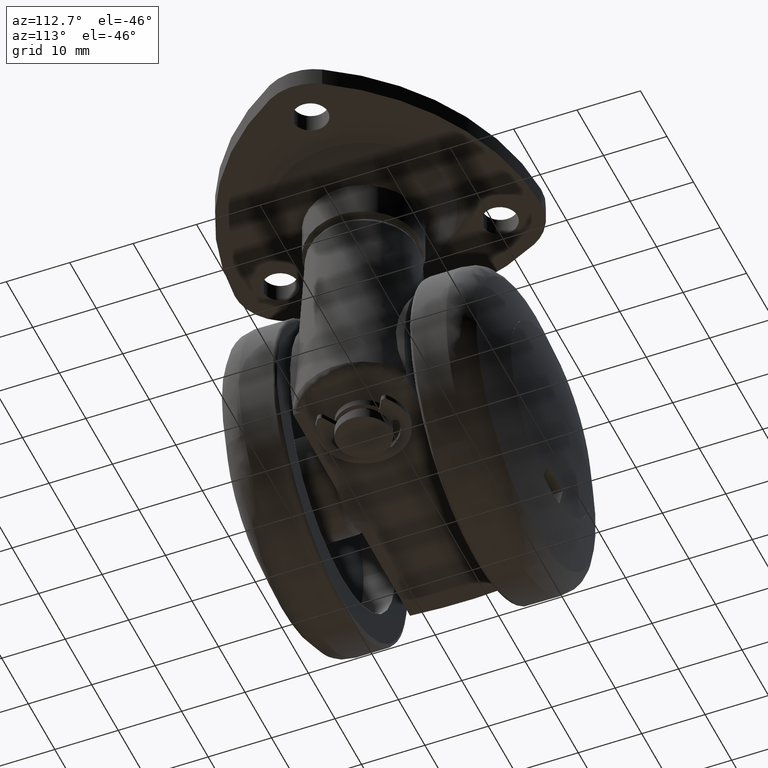
[diagram: clean part render]
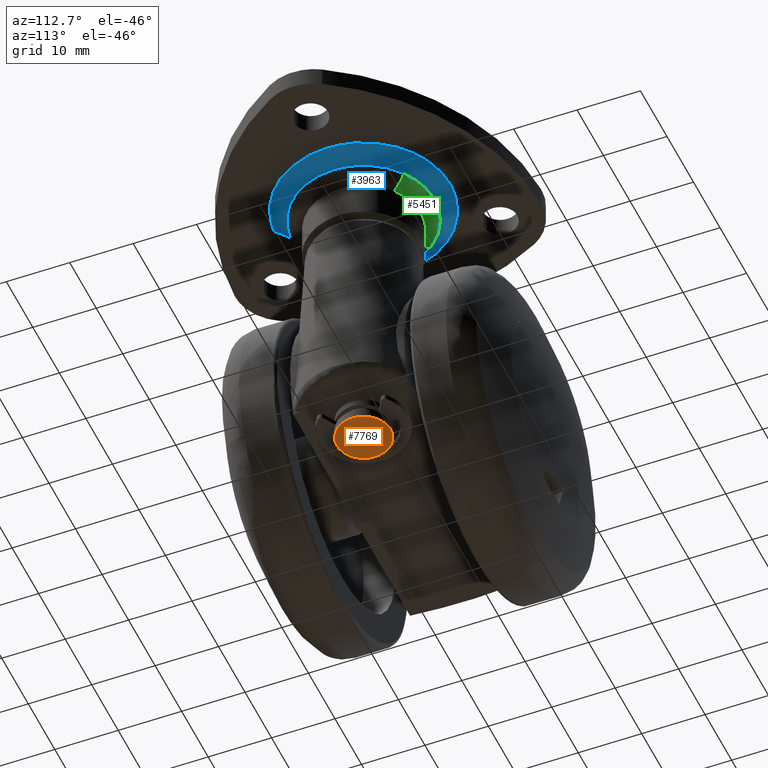
[diagram: same view with three faces highlighted in distinct colors, each labeled with its STEP entity id]
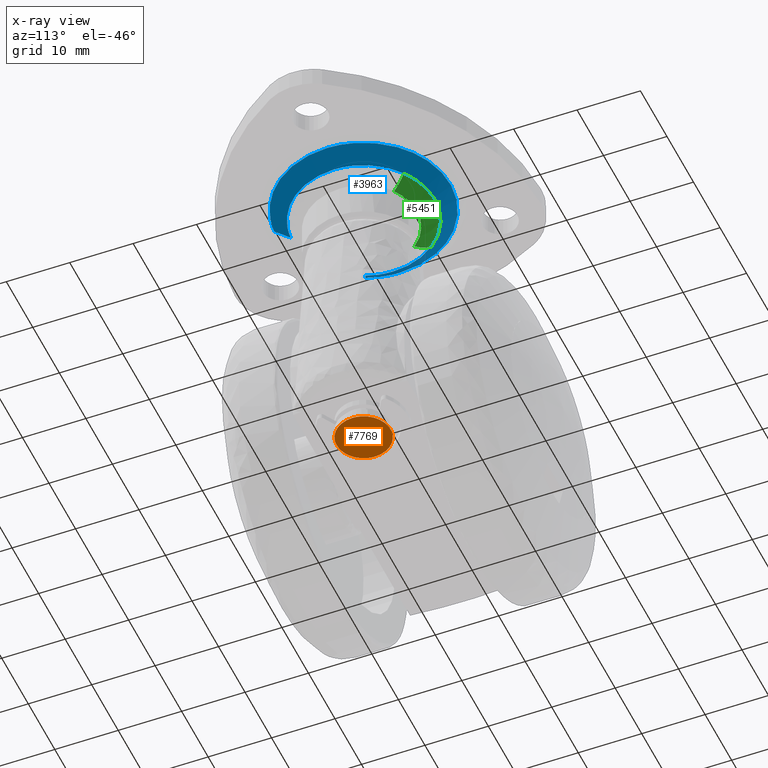
[diagram: x-ray of the same camera — body ghosted, the three highlighted faces saturated]
A machine part, auxiliary view with three faces highlighted in distinct colors.
The next image is the same camera in x-ray (body ghosted, the three faces saturated) — at least one of them is partly hidden behind the body in this view.
Their STEP definitions:

[orange] entity #7769 — the highlighted face is a freeform B-spline surface patch.
#5949=CARTESIAN_POINT('',(16.498354502571740,4.220290487029294,-11.0));
#5950=VERTEX_POINT('',#5949);
#5951=CARTESIAN_POINT('',(21.250000000000000,0.0,-11.0));
#5952=VERTEX_POINT('',#5951);
#5953=CARTESIAN_POINT('',(16.498354502571740,4.220290487029294,-11.000000000000005));
#5954=CARTESIAN_POINT('',(16.748297491340900,4.250000000000000,-11.000000000000004));
#5955=CARTESIAN_POINT('',(17.0,4.250000000000000,-11.0));
#5956=CARTESIAN_POINT('',(21.250000000000007,4.249999999999999,-11.0));
#5957=CARTESIAN_POINT('',(21.250000000000000,0.0,-11.0));
#5965=(BOUNDED_CURVE()B_SPLINE_CURVE(2,(#5953,#5954,#5955,#5956,#5957),.UNSPECIFIED.,.F.,.U.)B_SPLINE_CURVE_WITH_KNOTS((3,2,3),(0.229562473504669,0.250000000000000,0.500000000000000),.UNSPECIFIED.)CURVE()GEOMETRIC_REPRESENTATION_ITEM()RATIONAL_B_SPLINE_CURVE((0.956026754166373,0.976055948320789,1.0,0.707106781186548,1.0))REPRESENTATION_ITEM(''));
#5966=EDGE_CURVE('',#5950,#5952,#5965,.T.);
#6007=CARTESIAN_POINT('',(17.259449327781549,-4.242073319293881,-11.000000000000540));
#6008=VERTEX_POINT('',#6007);
#6014=CARTESIAN_POINT('',(21.250000000000000,0.0,-11.0));
#6015=CARTESIAN_POINT('',(21.249999999999996,-3.998007361109719,-11.0));
#6016=CARTESIAN_POINT('',(17.259449327781542,-4.242073319293881,-11.000000000000542));
#6024=(BOUNDED_CURVE()B_SPLINE_CURVE(2,(#6014,#6015,#6016),.UNSPECIFIED.,.F.,.U.)B_SPLINE_CURVE_WITH_KNOTS((3,3),(0.500000000000000,0.739333245554010),.UNSPECIFIED.)CURVE()GEOMETRIC_REPRESENTATION_ITEM()RATIONAL_B_SPLINE_CURVE((1.0,0.719603661362463,0.976072648865589))REPRESENTATION_ITEM(''));
#6025=EDGE_CURVE('',#5952,#6008,#6024,.T.);
#6048=CARTESIAN_POINT('',(12.750000000000000,0.0,-11.0));
#6049=VERTEX_POINT('',#6048);
#6050=CARTESIAN_POINT('',(12.750000000000000,0.0,-11.0));
#6051=CARTESIAN_POINT('',(12.750000000000004,3.774741735046444,-11.0));
#6052=CARTESIAN_POINT('',(16.498354502571743,4.220290487029294,-11.000000000000007));
#6060=(BOUNDED_CURVE()B_SPLINE_CURVE(2,(#6050,#6051,#6052),.UNSPECIFIED.,.F.,.U.)B_SPLINE_CURVE_WITH_KNOTS((3,3),(0.0,0.229562473504669),.UNSPECIFIED.)CURVE()GEOMETRIC_REPRESENTATION_ITEM()RATIONAL_B_SPLINE_CURVE((1.0,0.731050832865759,0.956026754166373))REPRESENTATION_ITEM(''));
#6061=EDGE_CURVE('',#6049,#5950,#6060,.T.);
#6063=CARTESIAN_POINT('',(17.259449327781549,-4.242073319293881,-11.000000000000540));
#6064=CARTESIAN_POINT('',(17.129845751633713,-4.250000000000000,-11.000000000000005));
#6065=CARTESIAN_POINT('',(17.0,-4.250000000000000,-11.0));
#6066=CARTESIAN_POINT('',(12.750000000000002,-4.249999999999999,-11.0));
#6067=CARTESIAN_POINT('',(12.750000000000000,0.0,-11.0));
#6075=(BOUNDED_CURVE()B_SPLINE_CURVE(2,(#6063,#6064,#6065,#6066,#6067),.UNSPECIFIED.,.F.,.U.)B_SPLINE_CURVE_WITH_KNOTS((3,2,3),(0.739333245554010,0.750000000000000,1.0),.UNSPECIFIED.)CURVE()GEOMETRIC_REPRESENTATION_ITEM()RATIONAL_B_SPLINE_CURVE((0.976072648865589,0.987503119824085,1.0,0.707106781186548,1.0))REPRESENTATION_ITEM(''));
#6076=EDGE_CURVE('',#6008,#6049,#6075,.T.);
#7758=CARTESIAN_POINT('',(12.325425016474650,-4.674471941262461,-11.0));
#7759=CARTESIAN_POINT('',(21.674575211513119,-4.674471941262461,-11.0));
#7760=CARTESIAN_POINT('',(12.325425016474650,4.674497703880048,-11.0));
#7761=CARTESIAN_POINT('',(21.674575211513119,4.674497703880048,-11.0));
#7762=B_SPLINE_SURFACE_WITH_KNOTS('',1,1,((#7758,#7760),(#7759,#7761)),.UNSPECIFIED.,.F.,.F.,.U.,(2,2),(2,2),(0.0,9.349150195038469),(0.0,9.348969645142510),.UNSPECIFIED.);
#7763=ORIENTED_EDGE('',*,*,#6061,.T.);
#7764=ORIENTED_EDGE('',*,*,#5966,.T.);
#7765=ORIENTED_EDGE('',*,*,#6025,.T.);
#7766=ORIENTED_EDGE('',*,*,#6076,.T.);
#7767=EDGE_LOOP('',(#7763,#7764,#7765,#7766));
#7768=FACE_OUTER_BOUND('',#7767,.T.);
#7769=ADVANCED_FACE('',(#7768),#7762,.F.);

[blue] entity #3963 — the highlighted face is a freeform B-spline surface patch.
#3732=CARTESIAN_POINT('',(17.876781022453041,-11.140559179807500,34.410533000002452));
#3733=VERTEX_POINT('',#3732);
#3734=CARTESIAN_POINT('',(6.608757670095598,-4.111312034045279,34.410533000000783));
#3735=VERTEX_POINT('',#3734);
#3751=CARTESIAN_POINT('',(18.074235722936152,-13.649459027250510,36.529822727381827));
#3752=VERTEX_POINT('',#3751);
#3753=CARTESIAN_POINT('',(17.876781022453041,-11.140559179807500,34.410533000002452));
#3754=CARTESIAN_POINT('',(18.074235722936152,-13.649459027250510,36.529822727381827));
#3755=QUASI_UNIFORM_CURVE('',1,(#3753,#3754),.UNSPECIFIED.,.F.,.U.);
#3756=EDGE_CURVE('',#3733,#3752,#3755,.T.);
#3758=CARTESIAN_POINT('',(4.268607065961804,-5.037196450454438,36.529822727268837));
#3759=VERTEX_POINT('',#3758);
#3775=CARTESIAN_POINT('',(6.608757670095598,-4.111312034045279,34.410533000000783));
#3776=CARTESIAN_POINT('',(4.268607065961804,-5.037196450454438,36.529822727268837));
#3777=QUASI_UNIFORM_CURVE('',1,(#3775,#3776),.UNSPECIFIED.,.F.,.U.);
#3778=EDGE_CURVE('',#3735,#3759,#3777,.T.);
#3783=CARTESIAN_POINT('',(17.871844638476311,-11.077836474616220,34.357550580268402));
#3784=CARTESIAN_POINT('',(28.949681113092531,-10.205991836139907,34.357550580268402));
#3785=CARTESIAN_POINT('',(28.077836474616220,0.871844638476311,34.357550580268402));
#3786=CARTESIAN_POINT('',(27.205991836139908,11.949681113092529,34.357550580268402));
#3787=CARTESIAN_POINT('',(16.128155361523689,11.077836474616220,34.357550580268402));
#3788=CARTESIAN_POINT('',(5.050318886907472,10.205991836139907,34.357550580268402));
#3789=CARTESIAN_POINT('',(5.922163525383782,-0.871844638476311,34.357550580268402));
#3790=CARTESIAN_POINT('',(6.053132990209122,-2.535969472734319,34.357550580268395));
#3791=CARTESIAN_POINT('',(6.667261630145285,-4.088164846494024,34.357550580268395));
#3792=CARTESIAN_POINT('',(18.079295499858659,-13.713749592036150,36.584129531861322));
#3793=CARTESIAN_POINT('',(31.793045091894808,-12.634454092177487,36.584129531861322));
#3794=CARTESIAN_POINT('',(30.713749592036152,1.079295499858661,36.584129531861322));
#3795=CARTESIAN_POINT('',(29.634454092177492,14.793045091894804,36.584129531861322));
#3796=CARTESIAN_POINT('',(15.920704500141341,13.713749592036150,36.584129531861322));
#3797=CARTESIAN_POINT('',(2.206954908105190,12.634454092177487,36.584129531861322));
#3798=CARTESIAN_POINT('',(3.286250407963852,-1.079295499858661,36.584129531861322));
#3799=CARTESIAN_POINT('',(3.448383370382394,-3.139390114831175,36.584129531861322));
#3800=CARTESIAN_POINT('',(4.208640700835003,-5.060922240931187,36.584129531861308));
#3808=(BOUNDED_SURFACE()B_SPLINE_SURFACE(2,1,((#3783,#3792),(#3784,#3793),(#3785,#3794),(#3786,#3795),(#3787,#3796),(#3788,#3797),(#3789,#3798),(#3790,#3799),(#3791,#3800)),.UNSPECIFIED.,.F.,.F.,.U.)B_SPLINE_SURFACE_WITH_KNOTS((3,2,2,2,3),(2,2),(0.0,22.791944245722210,45.583888491444412,68.375832737166618,72.934221586311068),(0.0,3.456693166908427),.UNSPECIFIED.)GEOMETRIC_REPRESENTATION_ITEM()RATIONAL_B_SPLINE_SURFACE(((1.0,1.0),(0.707106781186548,0.707106781186548),(1.0,1.0),(0.707106781186548,0.707106781186548),(1.0,1.0),(0.707106781186548,0.707106781186548),(1.0,1.0),(0.941421356237310,0.941421356237310),(0.906274169979695,0.906274169979695)))REPRESENTATION_ITEM('')SURFACE());
#3809=CARTESIAN_POINT('',(5.824992000000102,0.0,34.410533000000001));
#3810=VERTEX_POINT('',#3809);
#3811=CARTESIAN_POINT('',(6.608757670095599,-4.111312034045279,34.410533000000775));
#3812=CARTESIAN_POINT('',(5.824992000000101,-2.130363144647019,34.410533000000001));
#3813=CARTESIAN_POINT('',(5.824992000000102,0.0,34.410533000000001));
#3821=(BOUNDED_CURVE()B_SPLINE_CURVE(2,(#3811,#3812,#3813),.UNSPECIFIED.,.F.,.U.)B_SPLINE_CURVE_WITH_KNOTS((3,3),(0.937532549939185,1.0),.UNSPECIFIED.)CURVE()GEOMETRIC_REPRESENTATION_ITEM()RATIONAL_B_SPLINE_CURVE((0.890203187501033,0.926814829922477,1.0))REPRESENTATION_ITEM(''));
#3822=EDGE_CURVE('',#3735,#3810,#3821,.T.);
#3823=ORIENTED_EDGE('',*,*,#3822,.F.);
#3824=ORIENTED_EDGE('',*,*,#3778,.T.);
#3825=CARTESIAN_POINT('',(3.308334136370140,0.0,36.529822727266946));
#3826=VERTEX_POINT('',#3825);
#3827=CARTESIAN_POINT('',(4.268607065961803,-5.037196450454438,36.529822727268837));
#3828=CARTESIAN_POINT('',(3.308334136370141,-2.610129705933102,36.529822727266954));
#3829=CARTESIAN_POINT('',(3.308334136370140,0.0,36.529822727266946));
#3837=(BOUNDED_CURVE()B_SPLINE_CURVE(2,(#3827,#3828,#3829),.UNSPECIFIED.,.F.,.U.)B_SPLINE_CURVE_WITH_KNOTS((3,3),(0.437532549938905,0.500000000000000),.UNSPECIFIED.)CURVE()GEOMETRIC_REPRESENTATION_ITEM()RATIONAL_B_SPLINE_CURVE((0.890203187500705,0.926814829922149,1.0))REPRESENTATION_ITEM(''));
#3838=EDGE_CURVE('',#3759,#3826,#3837,.T.);
#3839=ORIENTED_EDGE('',*,*,#3838,.T.);
#3840=CARTESIAN_POINT('',(8.140725978785367,10.439108101375851,36.529822727694182));
#3841=VERTEX_POINT('',#3840);
#3842=CARTESIAN_POINT('',(3.308334136370140,0.0,36.529822727266946));
#3843=CARTESIAN_POINT('',(3.308334136370141,6.338040931546702,36.529822727266968));
#3844=CARTESIAN_POINT('',(8.140725978785367,10.439108101375851,36.529822727694182));
#3852=(BOUNDED_CURVE()B_SPLINE_CURVE(2,(#3842,#3843,#3844),.UNSPECIFIED.,.F.,.U.)B_SPLINE_CURVE_WITH_KNOTS((3,3),(0.500000000000000,0.637331629833570),.UNSPECIFIED.)CURVE()GEOMETRIC_REPRESENTATION_ITEM()RATIONAL_B_SPLINE_CURVE((1.0,0.839105987572592,0.854978670802133))REPRESENTATION_ITEM(''));
#3853=EDGE_CURVE('',#3826,#3841,#3852,.T.);
#3854=ORIENTED_EDGE('',*,*,#3853,.T.);
#3855=CARTESIAN_POINT('',(26.915338952621539,9.441809551409151,36.529822728163943));
#3856=VERTEX_POINT('',#3855);
#3857=CARTESIAN_POINT('',(8.140725978785367,10.439108101375849,36.529822727694182));
#3858=CARTESIAN_POINT('',(11.973297588121159,13.691665863629863,36.529822727266968));
#3859=CARTESIAN_POINT('',(17.0,13.691665863629860,36.529822727266946));
#3860=CARTESIAN_POINT('',(22.868444123588951,13.691665863629868,36.529822727266968));
#3861=CARTESIAN_POINT('',(26.915338952621532,9.441809551409151,36.529822728163936));
#3869=(BOUNDED_CURVE()B_SPLINE_CURVE(2,(#3857,#3858,#3859,#3860,#3861),.UNSPECIFIED.,.F.,.U.)B_SPLINE_CURVE_WITH_KNOTS((3,2,3),(0.637331629833571,0.750000000000000,0.878690594339404),.UNSPECIFIED.)CURVE()GEOMETRIC_REPRESENTATION_ITEM()RATIONAL_B_SPLINE_CURVE((0.854978670802134,0.868000793613956,1.0,0.849229590371663,0.853681049734255))REPRESENTATION_ITEM(''));
#3870=EDGE_CURVE('',#3841,#3856,#3869,.T.);
#3871=ORIENTED_EDGE('',*,*,#3870,.T.);
#3872=CARTESIAN_POINT('',(30.691665863629861,0.0,36.529822727266946));
#3873=VERTEX_POINT('',#3872);
#3874=CARTESIAN_POINT('',(26.915338952621529,9.441809551409151,36.529822728163929));
#3875=CARTESIAN_POINT('',(30.691665863629858,5.476090784342007,36.529822727266946));
#3876=CARTESIAN_POINT('',(30.691665863629861,0.0,36.529822727266946));
#3884=(BOUNDED_CURVE()B_SPLINE_CURVE(2,(#3874,#3875,#3876),.UNSPECIFIED.,.F.,.U.)B_SPLINE_CURVE_WITH_KNOTS((3,3),(0.878690594339404,1.0),.UNSPECIFIED.)CURVE()GEOMETRIC_REPRESENTATION_ITEM()RATIONAL_B_SPLINE_CURVE((0.853681049734255,0.857877190814885,1.0))REPRESENTATION_ITEM(''));
#3885=EDGE_CURVE('',#3856,#3873,#3884,.T.);
#3886=ORIENTED_EDGE('',*,*,#3885,.T.);
#3887=CARTESIAN_POINT('',(30.691665863629861,0.0,36.529822727266946));
#3888=CARTESIAN_POINT('',(30.691665863629854,-12.656445738822175,36.529822727266961));
#3889=CARTESIAN_POINT('',(18.074235722936145,-13.649459027250515,36.529822727381827));
#3897=(BOUNDED_CURVE()B_SPLINE_CURVE(2,(#3887,#3888,#3889),.UNSPECIFIED.,.F.,.U.)B_SPLINE_CURVE_WITH_KNOTS((3,3),(0.0,0.236331300626306),.UNSPECIFIED.)CURVE()GEOMETRIC_REPRESENTATION_ITEM()RATIONAL_B_SPLINE_CURVE((1.0,0.723120658612767,0.969723356158331))REPRESENTATION_ITEM(''));
#3898=EDGE_CURVE('',#3873,#3752,#3897,.T.);
#3899=ORIENTED_EDGE('',*,*,#3898,.T.);
#3900=ORIENTED_EDGE('',*,*,#3756,.F.);
#3901=CARTESIAN_POINT('',(28.175007999999899,0.0,34.410533000000001));
#3902=VERTEX_POINT('',#3901);
#3903=CARTESIAN_POINT('',(28.175007999999899,0.0,34.410533000000001));
#3904=CARTESIAN_POINT('',(28.175007999999909,-10.330071139364527,34.410533000000008));
#3905=CARTESIAN_POINT('',(17.876781022453041,-11.140559179807502,34.410533000002452));
#3913=(BOUNDED_CURVE()B_SPLINE_CURVE(2,(#3903,#3904,#3905),.UNSPECIFIED.,.F.,.U.)B_SPLINE_CURVE_WITH_KNOTS((3,3),(0.500000000000000,0.736331300632109),.UNSPECIFIED.)CURVE()GEOMETRIC_REPRESENTATION_ITEM()RATIONAL_B_SPLINE_CURVE((1.0,0.723120658605968,0.969723356170442))REPRESENTATION_ITEM(''));
#3914=EDGE_CURVE('',#3902,#3733,#3913,.T.);
#3915=ORIENTED_EDGE('',*,*,#3914,.F.);
#3916=CARTESIAN_POINT('',(23.505442092297219,9.086259052067513,34.410535591069703));
#3917=VERTEX_POINT('',#3916);
#3918=CARTESIAN_POINT('',(23.505442092297212,9.086259052067513,34.410535591069710));
#3919=CARTESIAN_POINT('',(28.175008997290718,5.743011179996732,34.410534295534852));
#3920=CARTESIAN_POINT('',(28.175007999999899,0.0,34.410533000000001));
#3928=(BOUNDED_CURVE()B_SPLINE_CURVE(2,(#3918,#3919,#3920),.UNSPECIFIED.,.F.,.U.)B_SPLINE_CURVE_WITH_KNOTS((3,3),(0.350192971059488,0.500000000000000),.UNSPECIFIED.)CURVE()GEOMETRIC_REPRESENTATION_ITEM()RATIONAL_B_SPLINE_CURVE((0.859321172120591,0.824490148370934,1.0))REPRESENTATION_ITEM(''));
#3929=EDGE_CURVE('',#3917,#3902,#3928,.T.);
#3930=ORIENTED_EDGE('',*,*,#3929,.F.);
#3931=CARTESIAN_POINT('',(8.300677439521740,7.014456074907987,34.410532827778042));
#3932=VERTEX_POINT('',#3931);
#3933=CARTESIAN_POINT('',(8.300677439521740,7.014456074907987,34.410532827778042));
#3934=CARTESIAN_POINT('',(11.655423030706242,11.175008773340302,34.410533527503546));
#3935=CARTESIAN_POINT('',(17.000001148093499,11.175009703363649,34.410534481113892));
#3936=CARTESIAN_POINT('',(20.588047484819928,11.175010327728522,34.410535121313728));
#3937=CARTESIAN_POINT('',(23.505442092297212,9.086259052067513,34.410535591069710));
#3945=(BOUNDED_CURVE()B_SPLINE_CURVE(2,(#3933,#3934,#3935,#3936,#3937),.UNSPECIFIED.,.F.,.U.)B_SPLINE_CURVE_WITH_KNOTS((3,2,3),(0.108867648264104,0.250000000000000,0.350192971059488),.UNSPECIFIED.)CURVE()GEOMETRIC_REPRESENTATION_ITEM()RATIONAL_B_SPLINE_CURVE((0.855992631305326,0.834653164885445,1.0,0.882616632815613,0.859321172120591))REPRESENTATION_ITEM(''));
#3946=EDGE_CURVE('',#3932,#3917,#3945,.T.);
#3947=ORIENTED_EDGE('',*,*,#3946,.F.);
#3948=CARTESIAN_POINT('',(5.824992000000102,0.0,34.410533000000001));
#3949=CARTESIAN_POINT('',(5.824992000000101,3.944112831525416,34.410533000000001));
#3950=CARTESIAN_POINT('',(8.300677439521740,7.014456074907987,34.410532827778042));
#3958=(BOUNDED_CURVE()B_SPLINE_CURVE(2,(#3948,#3949,#3950),.UNSPECIFIED.,.F.,.U.)B_SPLINE_CURVE_WITH_KNOTS((3,3),(0.0,0.108867648264104),.UNSPECIFIED.)CURVE()GEOMETRIC_REPRESENTATION_ITEM()RATIONAL_B_SPLINE_CURVE((1.0,0.872453616301103,0.855992631305326))REPRESENTATION_ITEM(''));
#3959=EDGE_CURVE('',#3810,#3932,#3958,.T.);
#3960=ORIENTED_EDGE('',*,*,#3959,.F.);
#3961=EDGE_LOOP('',(#3823,#3824,#3839,#3854,#3871,#3886,#3899,#3900,#3915,#3930,#3947,#3960));
#3962=FACE_OUTER_BOUND('',#3961,.T.);
#3963=ADVANCED_FACE('',(#3962),#3808,.T.);

[green] entity #5451 — the highlighted face is a freeform B-spline surface patch.
#3916=CARTESIAN_POINT('',(23.505442092297219,9.086259052067513,34.410535591069703));
#3917=VERTEX_POINT('',#3916);
#3931=CARTESIAN_POINT('',(8.300677439521740,7.014456074907987,34.410532827778042));
#3932=VERTEX_POINT('',#3931);
#3933=CARTESIAN_POINT('',(8.300677439521740,7.014456074907987,34.410532827778042));
#3934=CARTESIAN_POINT('',(11.655423030706242,11.175008773340302,34.410533527503546));
#3935=CARTESIAN_POINT('',(17.000001148093499,11.175009703363649,34.410534481113892));
#3936=CARTESIAN_POINT('',(20.588047484819928,11.175010327728522,34.410535121313728));
#3937=CARTESIAN_POINT('',(23.505442092297212,9.086259052067513,34.410535591069710));
#3945=(BOUNDED_CURVE()B_SPLINE_CURVE(2,(#3933,#3934,#3935,#3936,#3937),.UNSPECIFIED.,.F.,.U.)B_SPLINE_CURVE_WITH_KNOTS((3,2,3),(0.108867648264104,0.250000000000000,0.350192971059488),.UNSPECIFIED.)CURVE()GEOMETRIC_REPRESENTATION_ITEM()RATIONAL_B_SPLINE_CURVE((0.855992631305326,0.834653164885445,1.0,0.882616632815613,0.859321172120591))REPRESENTATION_ITEM(''));
#3946=EDGE_CURVE('',#3932,#3917,#3945,.T.);
#4370=CARTESIAN_POINT('',(10.460787318873120,5.272711730987567,33.099833841820768));
#4371=VERTEX_POINT('',#4370);
#4385=CARTESIAN_POINT('',(21.890088671658638,6.830067662621261,33.099833841881960));
#4386=VERTEX_POINT('',#4385);
#4387=CARTESIAN_POINT('',(10.460787318873114,5.272711730987567,33.099833841820761));
#4388=CARTESIAN_POINT('',(12.982522954575920,8.400166158198481,33.099833841801392));
#4389=CARTESIAN_POINT('',(17.0,8.400166158198481,33.099833841801399));
#4390=CARTESIAN_POINT('',(19.697106154331973,8.400166158198481,33.099833841801399));
#4391=CARTESIAN_POINT('',(21.890088671658642,6.830067662621262,33.099833841881960));
#4399=(BOUNDED_CURVE()B_SPLINE_CURVE(2,(#4387,#4388,#4389,#4390,#4391),.UNSPECIFIED.,.F.,.U.)B_SPLINE_CURVE_WITH_KNOTS((3,2,3),(0.108867648264210,0.250000000000000,0.350192975580712),.UNSPECIFIED.)CURVE()GEOMETRIC_REPRESENTATION_ITEM()RATIONAL_B_SPLINE_CURVE((0.855992631305294,0.834653164885568,1.0,0.882616627518671,0.859321170018169))REPRESENTATION_ITEM(''));
#4400=EDGE_CURVE('',#4371,#4386,#4399,.T.);
#5394=CARTESIAN_POINT('',(8.300677439521740,7.014456074907987,34.410532827778034));
#5395=CARTESIAN_POINT('',(9.245777483608551,6.252401018350011,33.388166190762902));
#5396=CARTESIAN_POINT('',(10.460787318873116,5.272711730987568,33.099833841820768));
#5404=(BOUNDED_CURVE()B_SPLINE_CURVE(2,(#5394,#5395,#5396),.UNSPECIFIED.,.F.,.U.)B_SPLINE_CURVE_WITH_KNOTS((3,3),(-1.457082628142907,-0.548112434388033),.UNSPECIFIED.)CURVE()GEOMETRIC_REPRESENTATION_ITEM()RATIONAL_B_SPLINE_CURVE((0.940145813674147,0.908710270350177,0.939788526822258))REPRESENTATION_ITEM(''));
#5405=EDGE_CURVE('',#3932,#4371,#5404,.T.);
#5412=CARTESIAN_POINT('',(23.505442092297219,9.086259052067513,34.410535591069703));
#5413=CARTESIAN_POINT('',(22.798686497030403,8.099121261283676,33.388166607931097));
#5414=CARTESIAN_POINT('',(21.890088671658638,6.830067662621262,33.099833841881960));
#5422=(BOUNDED_CURVE()B_SPLINE_CURVE(2,(#5412,#5413,#5414),.UNSPECIFIED.,.F.,.U.)B_SPLINE_CURVE_WITH_KNOTS((3,3),(-1.457083899071104,-0.548112434587513),.UNSPECIFIED.)CURVE()GEOMETRIC_REPRESENTATION_ITEM()RATIONAL_B_SPLINE_CURVE((0.918998072389233,0.888269518039783,0.918648736476130))REPRESENTATION_ITEM(''));
#5423=EDGE_CURVE('',#3917,#4386,#5422,.T.);
#5428=CARTESIAN_POINT('',(8.210562085624414,7.087118076686343,34.510565317093324));
#5429=CARTESIAN_POINT('',(14.903306420326137,15.387454005921235,34.510565317093324));
#5430=CARTESIAN_POINT('',(23.572829615527358,9.180379748616284,34.510565317093317));
#5431=CARTESIAN_POINT('',(9.231103355793536,6.264233091971837,33.348188004547161));
#5432=CARTESIAN_POINT('',(15.146753424537421,13.600817362161811,33.348188004547161));
#5433=CARTESIAN_POINT('',(22.809658642618558,8.114446238355708,33.348188004547161));
#5434=CARTESIAN_POINT('',(10.578216522936920,5.178025968011251,33.073951979059579));
#5435=CARTESIAN_POINT('',(15.468103157723892,11.242459284873739,33.073951979059579));
#5436=CARTESIAN_POINT('',(21.802273937621081,6.707415372535433,33.073951979059593));
#5444=(BOUNDED_SURFACE()B_SPLINE_SURFACE(2,2,((#5428,#5431,#5434),(#5429,#5432,#5435),(#5430,#5433,#5436)),.UNSPECIFIED.,.F.,.F.,.U.)B_SPLINE_SURFACE_WITH_KNOTS((3,3),(3,3),(0.0,17.953943377965661),(0.0,3.432472948144467),.UNSPECIFIED.)GEOMETRIC_REPRESENTATION_ITEM()RATIONAL_B_SPLINE_SURFACE(((0.943442263403494,0.905431697615243,0.943049223186676),(0.678167535762311,0.650844685458196,0.677885009607151),(0.922220285192199,0.885064736642679,0.921836086100314)))REPRESENTATION_ITEM('')SURFACE());
#5445=ORIENTED_EDGE('',*,*,#3946,.T.);
#5446=ORIENTED_EDGE('',*,*,#5423,.T.);
#5447=ORIENTED_EDGE('',*,*,#4400,.F.);
#5448=ORIENTED_EDGE('',*,*,#5405,.F.);
#5449=EDGE_LOOP('',(#5445,#5446,#5447,#5448));
#5450=FACE_OUTER_BOUND('',#5449,.T.);
#5451=ADVANCED_FACE('',(#5450),#5444,.T.);